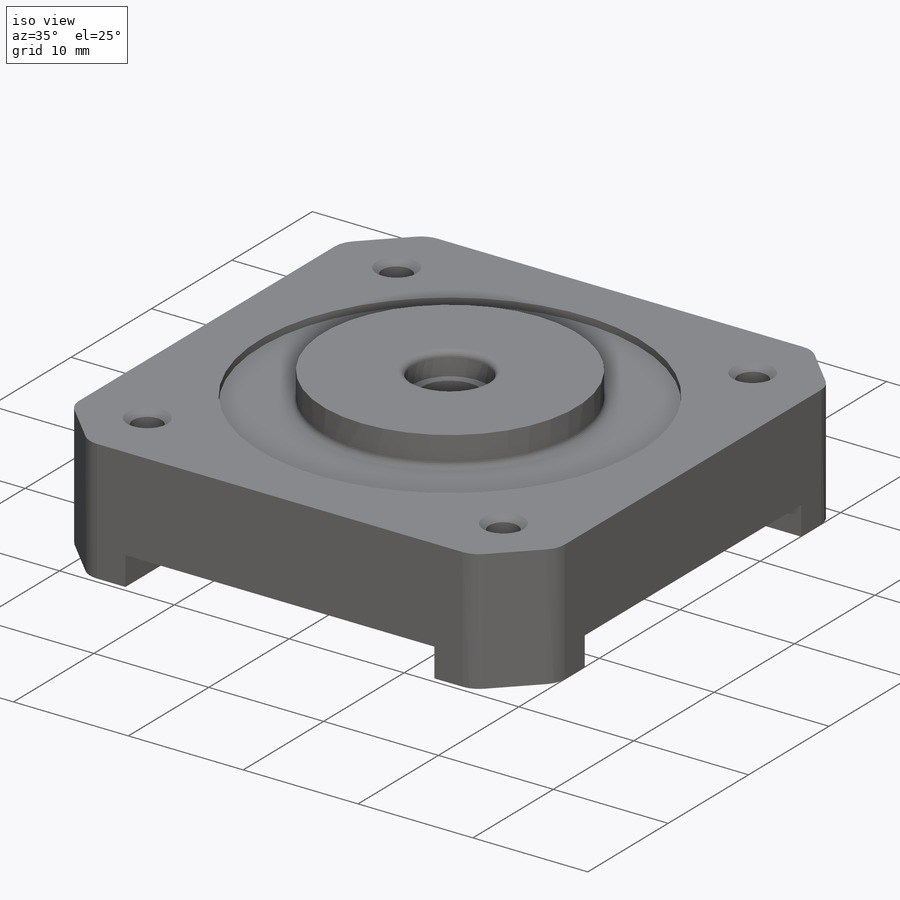
[diagram: iso view]
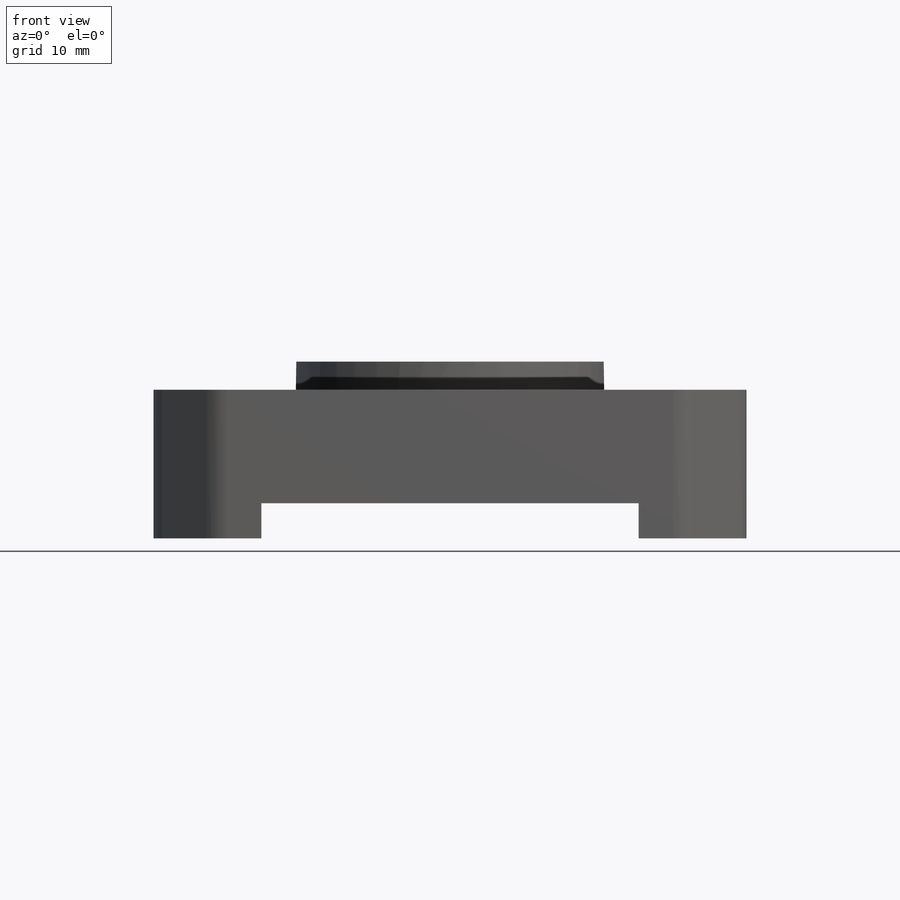
[diagram: front view]
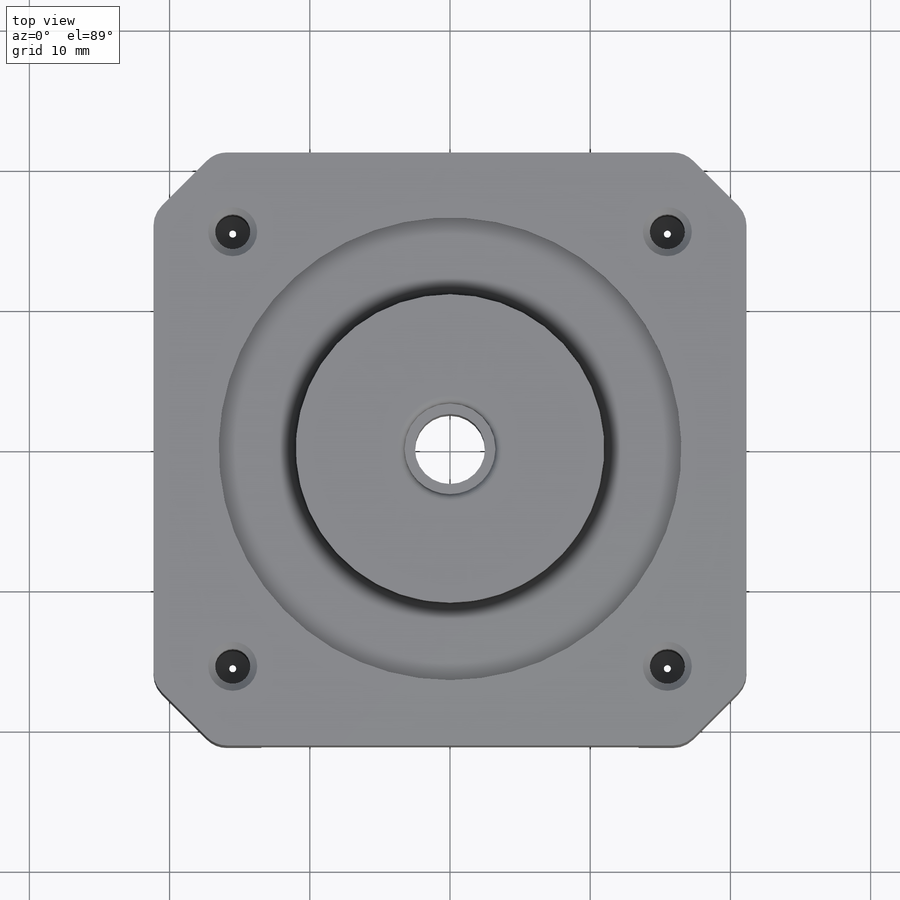
[diagram: top view]
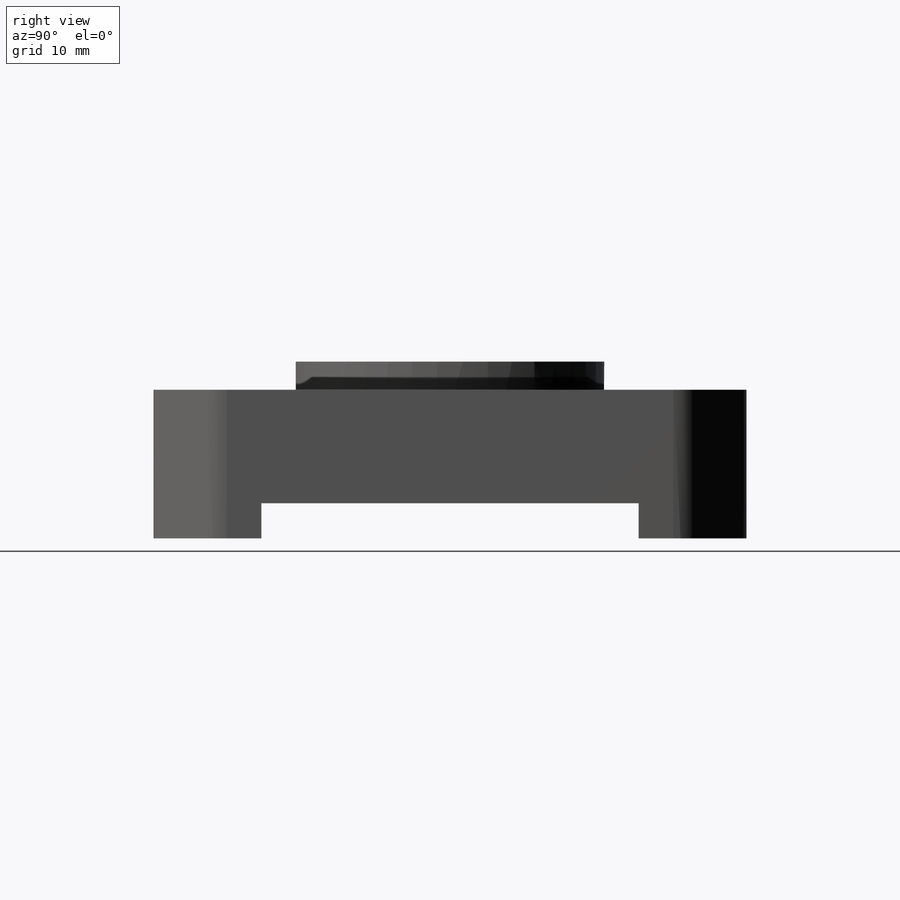
[diagram: right view]
SOLIDWORKS PART (.sldprt)
format: sldprt  version: not decoded by parser v0  size: 367,104 bytes
history: native  units: mm
features: sketch x9, cut_extrude x5, fillet x3, extrude x2, material x1, hole x1 (+13 scaffold rows collapsed)
feature tree (34):
  scaffold x13  (default folders/planes/origin — collapsed)
  material  "Alumina"
  sketch  "Sketch1"  dims[c1.D1=42.3mm c1.D2=42.3mm c1.D3=~4.557112mm c2.D3=45.0deg c2.D4=~4.557112mm c3.D4=45.0deg c3.D5=~9.601182mm c4.D5=45.0deg c4.D6=~9.10398mm c5.D6=45.0deg c5.D7=53.6mm c5.D8=53.6mm c5.D9=~2.270366mm c6.D8=~50.265357mm c6.D3=53.6mm c6.D1=42.3mm c6.D2=42.3mm]
  extrude  "Boss-Extrude1"  Depth=10.6mm
  sketch  "Sketch2"  dims[D1=33.0mm]
  cut_extrude  "Cut-Extrude1"  Depth=0.6mm
  sketch  "Sketch3"  dims[D1=22.0mm]
  extrude  "Boss-Extrude2"  Depth=2.6mm
  sketch  "Sketch4"  dims[D1=6.5mm]
  cut_extrude  "Cut-Extrude2"  Depth=2mm
  sketch  "Sketch5"  dims[D1=5.0mm]
  cut_extrude  "Cut-Extrude3"  [1 undecoded]
  fillet  "Fillet1"  Radius=0.5mm
  fillet  "Fillet2"  Radius=0.5mm
  hole  "M3x0.5 Tapped Hole1"  Diameter=2.5mm Depth=10mm
  sketch  "Sketch9"  dims[D1=31.0mm D2=31.0mm D3=31.0mm D4=31.0mm D5=5.65mm D6=5.65mm D7=5.65mm D8=5.65mm D9=5.65mm]
  sketch  "Sketch8"  dims[hole-wizard template sketch: 46 standard entries collapsed; hole parameters above]
  sketch  "Sketch10"  dims[D1=3.3mm D2=3.3mm D3=2.5mm]
  cut_extrude  "Cut-Extrude4"  [1 undecoded]
  sketch  "Sketch11"  dims[D1=2.5mm D2=3.3mm D3=3.3mm]
  cut_extrude  "Cut-Extrude5"  [1 undecoded]
  fillet  "Fillet3"  Radius=2mm
decode coverage: 17 of 20 modeling features carry decoded parameters
note: ~ marks probable driven/reference dimensions
note: 3 parameter values undecoded
summary: no parameter record found for 3 features
note: suppression state not decoded; provenance and decode notes live in map.json
